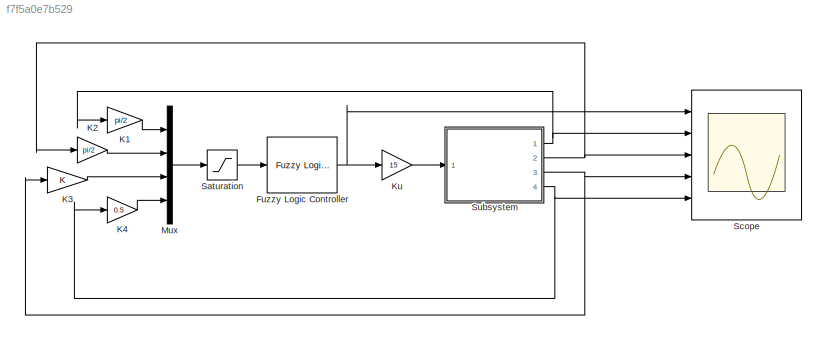
MODEL slx_f7f5a0e7b529
KIND model
CONFIG AbsTol = auto
CONFIG EnableMultiTasking = off
CONFIG FixedStep = 0.05
CONFIG MaxStep = auto
CONFIG MinStep = auto
CONFIG RelTol = 1e-3
CONFIG SampleTimeConstraint = Unconstrained
CONFIG Solver = ode5
CONFIG SolverName = ode5
CONFIG StartTime = 0.0
CONFIG StopTime = 6
BLOCK [Reference] Fuzzy Logic Controller  REF=fuzblock/Fuzzy Logic   (lib defined in mdl_858b3b3e7478)
Controller
  Ports = [1, 1]
  SourceBlock = fuzblock/Fuzzy Logic \nController
  SourceProductBaseCode = FL
  SourceProductName = Fuzzy Logic Toolbox
  SourceType = Fuzzy Inference System
BLOCK [Gain] K1
  Gain = pi/2
  OutDataTypeStr = Inherit: Inherit via internal rule
  ParamDataTypeStr = Inherit: Inherit via internal rule
  SaturateOnIntegerOverflow = off
BLOCK [Gain] K2
  Gain = pi/2
  OutDataTypeStr = Inherit: Inherit via internal rule
  ParamDataTypeStr = Inherit: Inherit via internal rule
  SaturateOnIntegerOverflow = off
BLOCK [Gain] K3
  OutDataTypeStr = Inherit: Inherit via internal rule
  ParamDataTypeStr = Inherit: Inherit via internal rule
  SaturateOnIntegerOverflow = off
BLOCK [Gain] K4
  Gain = 0.5
  OutDataTypeStr = Inherit: Inherit via internal rule
  ParamDataTypeStr = Inherit: Inherit via internal rule
  SaturateOnIntegerOverflow = off
BLOCK [Gain] Ku
  Gain = 15
  OutDataTypeStr = Inherit: Inherit via internal rule
  ParamDataTypeStr = Inherit: Inherit via internal rule
  SaturateOnIntegerOverflow = off
BLOCK [Mux] Mux
  DisplayOption = bar
  Ports = [4, 1]
BLOCK [Saturate] Saturation
  InputPortMap = u0
  LowerLimit = -1
  Ports = [1, 1]
  UpperLimit = 1
BLOCK [Scope] Scope
  Floating = off
  NumInputPorts = 5
  Ports = [5]
  ScopeSpecificationString = Simulink.scopes.TimeScopeBlockCfg('CurrentConfiguration', extmgr.ConfigurationSet(extmgr.Configuration('Core','General UI',true,'FigureColor',[1 1 1]),extmgr.Configuration('Core','Source UI',true),extmgr.Configuration('Sources','WiredSimulink',true),extmgr.Configuration('Visuals','Time Domain',true,'SerializedDisplays',{struct('MinYLimReal','-0.09842','MaxYLimReal','0.06805','YLabelReal','','MinYL...<+6722ch>
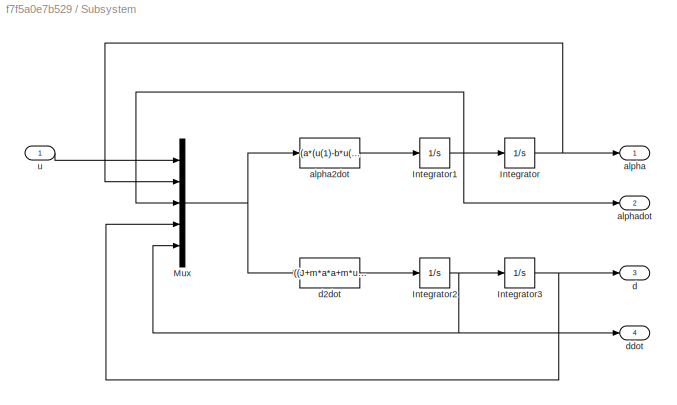
BLOCK [SubSystem] Subsystem
  Ports = [1, 4]
  RequestExecContextInheritance = off
BLOCK [Integrator] Subsystem/Integrator
  InitialCondition = alpha0
  Ports = [1, 1]
BLOCK [Integrator] Subsystem/Integrator1
  InitialCondition = alphadot0
  Ports = [1, 1]
BLOCK [Integrator] Subsystem/Integrator2
  InitialCondition = ddot0
  Ports = [1, 1]
BLOCK [Integrator] Subsystem/Integrator3
  InitialCondition = d0
  Ports = [1, 1]
BLOCK [Mux] Subsystem/Mux
  DisplayOption = bar
  Inputs = 5
  Ports = [5, 1]
BLOCK [Outport] Subsystem/alpha
  IconDisplay = Port number
BLOCK [Fcn] Subsystem/alpha2dot
  Expr = (a*(u(1)-b*u(5)+m*u(4)*u(3)*u(3)+m*g*a*sin(u(2)))+2*u(3)*m*u(4)*u(5)-m*g*a*sin(u(2))-m*g*u(4)*cos(u(2))-M1*g*c*sin(u(2)))/(-m*u(4)*u(4)-J)
BLOCK [Outport] Subsystem/alphadot
  IconDisplay = Port number
  Port = 2
BLOCK [Outport] Subsystem/d
  IconDisplay = Port number
  Port = 3
BLOCK [Fcn] Subsystem/d2dot
  Expr = ((J+m*a*a+m*u(4)*u(4))*(km*u(1)-b*u(5)+m*u(4)*u(3)*u(3) +m*g*a*sin(u(2))) - m*a*(2*u(3)*m*u(4)*u(5)+m*g*a*sin(u(2))+m*g*u(4)*cos(u(2))+M1*g*c*sin(u(2))))/(m*m*u(4)*u(4)+m*J)
BLOCK [Outport] Subsystem/ddot
  IconDisplay = Port number
  Port = 4
BLOCK [Inport] Subsystem/u
  IconDisplay = Port number
NET Fuzzy Logic Controller:1 -> Ku:1, Scope:1
LINE K1:1 -> Mux:1
LINE K2:1 -> Mux:2
LINE K3:1 -> Mux:3
LINE K4:1 -> Mux:4
LINE Ku:1 -> Subsystem:1
LINE Mux:1 -> Saturation:1
LINE Saturation:1 -> Fuzzy Logic Controller:1
NET Subsystem/Integrator1:1 -> Subsystem/Integrator:1, Subsystem/Mux:3, Subsystem/alphadot:1
NET Subsystem/Integrator2:1 -> Subsystem/Integrator3:1, Subsystem/Mux:5, Subsystem/ddot:1
NET Subsystem/Integrator3:1 -> Subsystem/Mux:4, Subsystem/d:1
NET Subsystem/Integrator:1 -> Subsystem/Mux:2, Subsystem/alpha:1
NET Subsystem/Mux:1 -> Subsystem/alpha2dot:1, Subsystem/d2dot:1
LINE Subsystem/alpha2dot:1 -> Subsystem/Integrator1:1
LINE Subsystem/d2dot:1 -> Subsystem/Integrator2:1
LINE Subsystem/u:1 -> Subsystem/Mux:1
NET Subsystem:1 -> K1:1, Scope:2
NET Subsystem:2 -> K2:1, Scope:3
NET Subsystem:3 -> K3:1, Scope:4
NET Subsystem:4 -> K4:1, Scope:5
note: NET lines group one-source signal fan-out (src -> all destinations, sorted); 1:1 wires keep LINE
